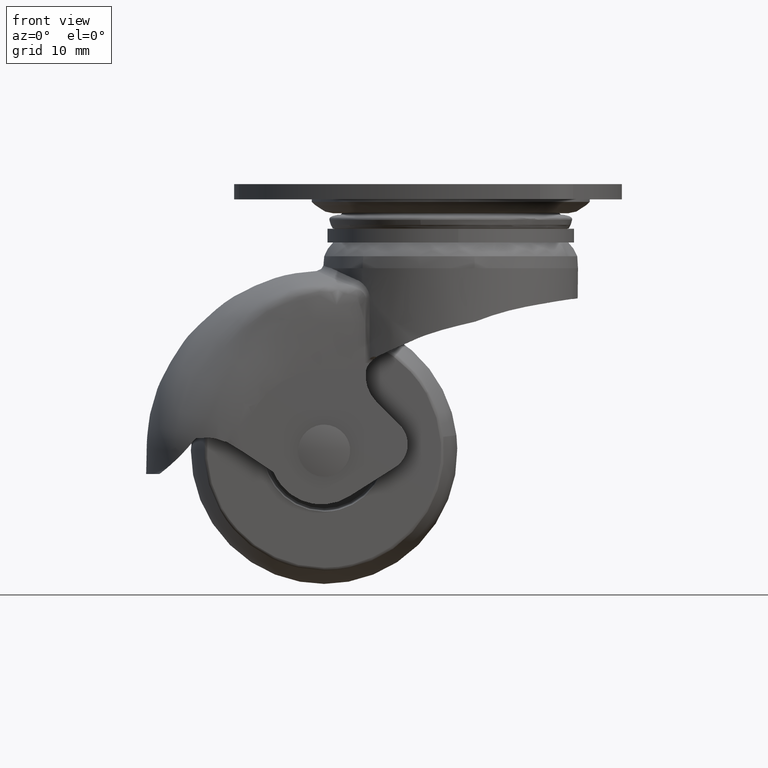
[diagram: clean part render]
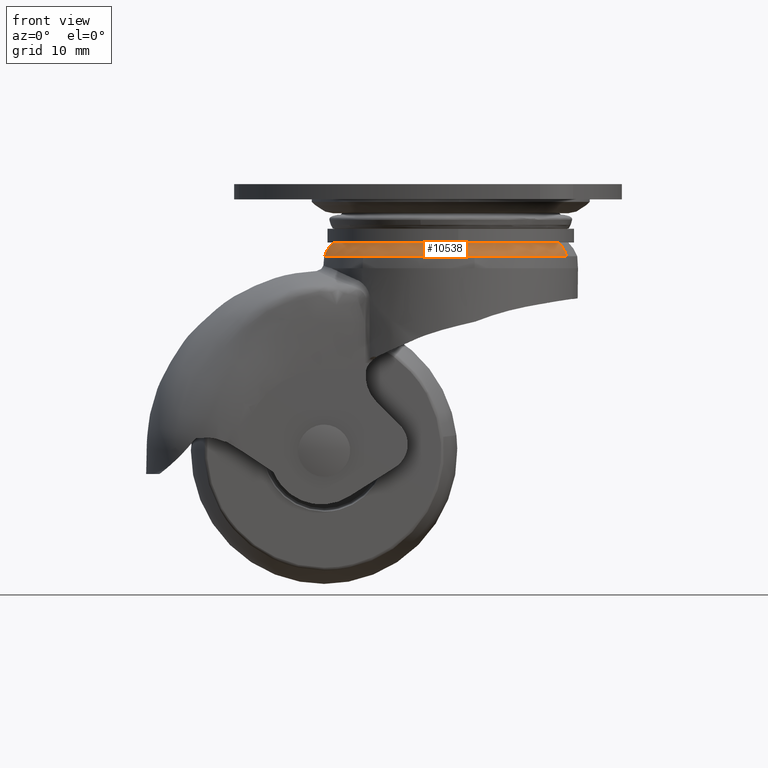
[diagram: same view with one face highlighted and labeled with its STEP entity id]
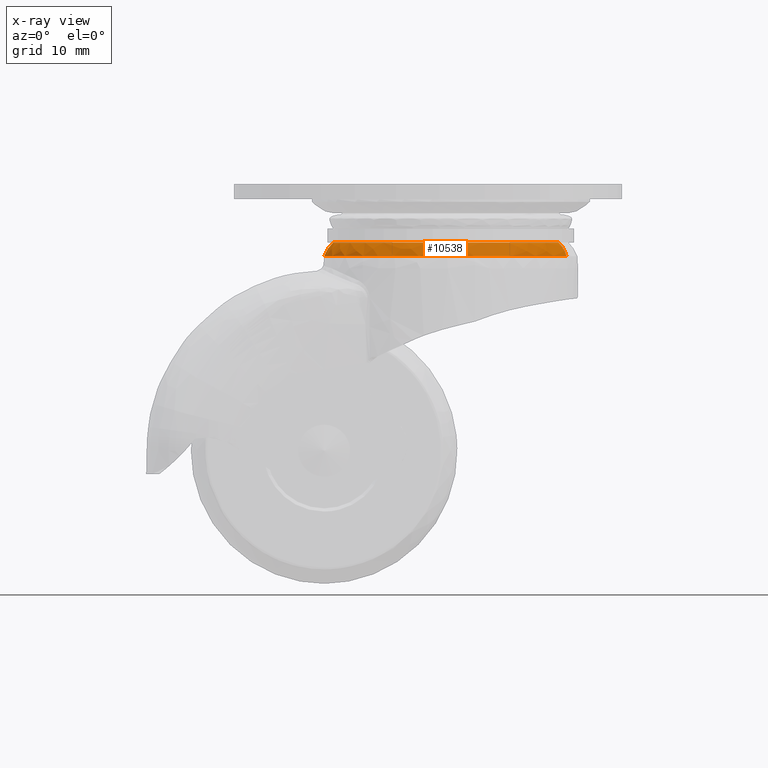
[diagram: x-ray of the same camera — body ghosted, the highlighted face saturated]
A machine part, front view. The second image highlights one B-rep face of the part: STEP entity #10538.
The next image is the same camera in x-ray: the body ghosted, the highlighted face saturated — about 0% of this face is hidden behind the body in this view.
In plain terms, the highlighted face is a freeform B-spline surface patch.
Its self-contained STEP definition (entity closure, byte-faithful):
#10288=CARTESIAN_POINT('',(-15.735206224410611,8.030868427095030,-8.785180318677041));
#10289=VERTEX_POINT('',#10288);
#10322=CARTESIAN_POINT('',(16.168754342670159,-7.117790782555396,-8.785180318672612));
#10323=VERTEX_POINT('',#10322);
#10337=CARTESIAN_POINT('',(17.374376848520921,-7.648524060749310,-10.832162650725930));
#10338=VERTEX_POINT('',#10337);
#10339=CARTESIAN_POINT('',(16.168754342670159,-7.117790782555396,-8.785180318672612));
#10340=CARTESIAN_POINT('',(17.088956519520963,-7.522878895851835,-9.585509667275785));
#10341=CARTESIAN_POINT('',(17.374376848520914,-7.648524060749310,-10.832162650725930));
#10349=(BOUNDED_CURVE()B_SPLINE_CURVE(2,(#10339,#10340,#10341),.UNSPECIFIED.,.F.,.U.)B_SPLINE_CURVE_WITH_KNOTS((3,3),(-1.514986752806446,-0.485126640816079),.UNSPECIFIED.)CURVE()GEOMETRIC_REPRESENTATION_ITEM()RATIONAL_B_SPLINE_CURVE((0.931721990555190,0.882439492822639,0.931711139167432))REPRESENTATION_ITEM(''));
#10350=EDGE_CURVE('',#10323,#10338,#10349,.T.);
#10367=CARTESIAN_POINT('',(-16.908500182186980,8.629689266453147,-10.832165184492560));
#10368=VERTEX_POINT('',#10367);
#10384=CARTESIAN_POINT('',(-15.735206224410614,8.030868427095030,-8.785180318677041));
#10385=CARTESIAN_POINT('',(-16.630734158051744,8.487924210335329,-9.585510630076746));
#10386=CARTESIAN_POINT('',(-16.908500182186984,8.629689266453147,-10.832165184492556));
#10394=(BOUNDED_CURVE()B_SPLINE_CURVE(2,(#10384,#10385,#10386),.UNSPECIFIED.,.F.,.U.)B_SPLINE_CURVE_WITH_KNOTS((3,3),(-1.514986752800429,-0.485125535810951),.UNSPECIFIED.)CURVE()GEOMETRIC_REPRESENTATION_ITEM()RATIONAL_B_SPLINE_CURVE((0.910763650495517,0.862589671396123,0.910753146556944))REPRESENTATION_ITEM(''));
#10395=EDGE_CURVE('',#10289,#10368,#10394,.T.);
#10400=CARTESIAN_POINT('',(16.080834789659303,-7.079086936012930,-8.711191086891661));
#10401=CARTESIAN_POINT('',(9.001747853646373,-23.159921725672227,-8.711191086891663));
#10402=CARTESIAN_POINT('',(-7.079086936012930,-16.080834789659303,-8.711191086891661));
#10403=CARTESIAN_POINT('',(-23.159921725672227,-9.001747853646373,-8.711191086891663));
#10404=CARTESIAN_POINT('',(-16.080834789659303,7.079086936012928,-8.711191086891661));
#10405=CARTESIAN_POINT('',(-15.878234558437368,7.539313074789744,-8.711191086891660));
#10406=CARTESIAN_POINT('',(-15.649644582415947,7.987198746995411,-8.711191086891661));
#10407=CARTESIAN_POINT('',(17.124314159397134,-7.538446246081844,-9.560650566077513));
#10408=CARTESIAN_POINT('',(9.585867913315289,-24.662760405478974,-9.560650566077513));
#10409=CARTESIAN_POINT('',(-7.538446246081843,-17.124314159397134,-9.560650566077513));
#10410=CARTESIAN_POINT('',(-24.662760405478974,-9.585867913315290,-9.560650566077513));
#10411=CARTESIAN_POINT('',(-17.124314159397134,7.538446246081843,-9.560650566077513));
#10412=CARTESIAN_POINT('',(-16.908567274761410,8.028536287293408,-9.560650566077513));
#10413=CARTESIAN_POINT('',(-16.665144180482919,8.505485093662252,-9.560650566077515));
#10414=CARTESIAN_POINT('',(17.399581860925792,-7.659624282874495,-10.950249484286775));
#10415=CARTESIAN_POINT('',(9.739957578051302,-25.059206143800289,-10.950249484286779));
#10416=CARTESIAN_POINT('',(-7.659624282874493,-17.399581860925792,-10.950249484286775));
#10417=CARTESIAN_POINT('',(-25.059206143800289,-9.739957578051302,-10.950249484286779));
#10418=CARTESIAN_POINT('',(-17.399581860925792,7.659624282874493,-10.950249484286775));
#10419=CARTESIAN_POINT('',(-17.180366916285280,8.157592359838651,-10.950249484286779));
#10420=CARTESIAN_POINT('',(-16.933030876061199,8.642207960944727,-10.950249484286783));
#10428=(BOUNDED_SURFACE()B_SPLINE_SURFACE(2,2,((#10400,#10407,#10414),(#10401,#10408,#10415),(#10402,#10409,#10416),(#10403,#10410,#10417),(#10404,#10411,#10418),(#10405,#10412,#10419),(#10406,#10413,#10420)),.UNSPECIFIED.,.F.,.F.,.U.)B_SPLINE_SURFACE_WITH_KNOTS((3,2,2,3),(3,3),(0.0,31.498332907282681,62.996665814565368,64.256597929290635),(0.0,2.750106980517234),.UNSPECIFIED.)GEOMETRIC_REPRESENTATION_ITEM()RATIONAL_B_SPLINE_SURFACE(((0.936891250136771,0.877270737847674,0.936879389520843),(0.662482156206053,0.620324087668616,0.662473769484101),(0.936891250136771,0.877270737847674,0.936879389520843),(0.662482156206053,0.620324087668616,0.662473769484101),(0.936891250136771,0.877270737847674,0.936879389520843),(0.925914896847419,0.866992881642248,0.925903175187117),(0.915816650983785,0.857537253149118,0.915805057162670)))REPRESENTATION_ITEM('')SURFACE());
#10429=CARTESIAN_POINT('',(-17.666113397869001,0.0,-8.785180317963400));
#10430=VERTEX_POINT('',#10429);
#10431=CARTESIAN_POINT('',(-17.666113397869001,0.0,-8.785180317963400));
#10432=CARTESIAN_POINT('',(-17.666113397869001,4.247563686686312,-8.785180317963400));
#10433=CARTESIAN_POINT('',(-15.735206224410613,8.030868427095030,-8.785180318677041));
#10441=(BOUNDED_CURVE()B_SPLINE_CURVE(2,(#10431,#10432,#10433),.UNSPECIFIED.,.F.,.U.)B_SPLINE_CURVE_WITH_KNOTS((3,3),(0.0,0.077307643276599),.UNSPECIFIED.)CURVE()GEOMETRIC_REPRESENTATION_ITEM()RATIONAL_B_SPLINE_CURVE((1.0,0.909428462087339,0.874871901326398))REPRESENTATION_ITEM(''));
#10442=EDGE_CURVE('',#10430,#10289,#10441,.T.);
#10443=ORIENTED_EDGE('',*,*,#10442,.T.);
#10444=ORIENTED_EDGE('',*,*,#10395,.T.);
#10445=CARTESIAN_POINT('',(-18.983385687776401,0.0,-10.832165072992099));
#10446=VERTEX_POINT('',#10445);
#10447=CARTESIAN_POINT('',(-18.983385687776401,0.0,-10.832165072992099));
#10448=CARTESIAN_POINT('',(-18.983385687776401,4.564282922859114,-10.832165072992099));
#10449=CARTESIAN_POINT('',(-16.908500182186987,8.629689266453148,-10.832165184492556));
#10457=(BOUNDED_CURVE()B_SPLINE_CURVE(2,(#10447,#10448,#10449),.UNSPECIFIED.,.F.,.U.)B_SPLINE_CURVE_WITH_KNOTS((3,3),(0.0,0.077307643274355),.UNSPECIFIED.)CURVE()GEOMETRIC_REPRESENTATION_ITEM()RATIONAL_B_SPLINE_CURVE((1.0,0.909428462089968,0.874871901328404))REPRESENTATION_ITEM(''));
#10458=EDGE_CURVE('',#10446,#10368,#10457,.T.);
#10459=ORIENTED_EDGE('',*,*,#10458,.F.);
#10460=CARTESIAN_POINT('',(-13.108446394946780,-13.730898196467500,-10.832165072999921));
#10461=VERTEX_POINT('',#10460);
#10462=CARTESIAN_POINT('',(-13.108446394946778,-13.730898196467503,-10.832165072999924));
#10463=CARTESIAN_POINT('',(-18.983385687776394,-8.122282817360341,-10.832165072992101));
#10464=CARTESIAN_POINT('',(-18.983385687776401,0.0,-10.832165072992099));
#10472=(BOUNDED_CURVE()B_SPLINE_CURVE(2,(#10462,#10463,#10464),.UNSPECIFIED.,.F.,.U.)B_SPLINE_CURVE_WITH_KNOTS((3,3),(0.871501103151236,1.0),.UNSPECIFIED.)CURVE()GEOMETRIC_REPRESENTATION_ITEM()RATIONAL_B_SPLINE_CURVE((0.853668132370819,0.849454177951950,1.0))REPRESENTATION_ITEM(''));
#10473=EDGE_CURVE('',#10461,#10446,#10472,.T.);
#10474=ORIENTED_EDGE('',*,*,#10473,.F.);
#10475=CARTESIAN_POINT('',(3.557131765466065,-18.647137736768290,-10.832165072994480));
#10476=VERTEX_POINT('',#10475);
#10477=CARTESIAN_POINT('',(3.557131765466065,-18.647137736768286,-10.832165072994478));
#10478=CARTESIAN_POINT('',(1.794458277507982,-18.983385687776401,-10.832165072992106));
#10479=CARTESIAN_POINT('',(0.0,-18.983385687776401,-10.832165072992099));
#10480=CARTESIAN_POINT('',(-7.606545647256391,-18.983385687776408,-10.832165072992099));
#10481=CARTESIAN_POINT('',(-13.108446394946778,-13.730898196467503,-10.832165072999924));
#10489=(BOUNDED_CURVE()B_SPLINE_CURVE(2,(#10477,#10478,#10479,#10480,#10481),.UNSPECIFIED.,.F.,.U.)B_SPLINE_CURVE_WITH_KNOTS((3,2,3),(0.717838633740415,0.750000000000000,0.871501103151235),.UNSPECIFIED.)CURVE()GEOMETRIC_REPRESENTATION_ITEM()RATIONAL_B_SPLINE_CURVE((0.934335795160104,0.962320615659167,1.0,0.857652603234598,0.853668132370819))REPRESENTATION_ITEM(''));
#10490=EDGE_CURVE('',#10476,#10461,#10489,.T.);
#10491=ORIENTED_EDGE('',*,*,#10490,.F.);
#10492=CARTESIAN_POINT('',(17.374376848520921,-7.648524060749310,-10.832162650725930));
#10493=CARTESIAN_POINT('',(13.355404779553499,-16.778016883474340,-10.832163861860206));
#10494=CARTESIAN_POINT('',(3.557131765466064,-18.647137736768290,-10.832165072994483));
#10502=(BOUNDED_CURVE()B_SPLINE_CURVE(2,(#10492,#10493,#10494),.UNSPECIFIED.,.F.,.U.)B_SPLINE_CURVE_WITH_KNOTS((3,3),(0.568414956251090,0.717838633740415),.UNSPECIFIED.)CURVE()GEOMETRIC_REPRESENTATION_ITEM()RATIONAL_B_SPLINE_CURVE((0.883563156462430,0.804316605082864,0.934335795160104))REPRESENTATION_ITEM(''));
#10503=EDGE_CURVE('',#10338,#10476,#10502,.T.);
#10504=ORIENTED_EDGE('',*,*,#10503,.F.);
#10505=ORIENTED_EDGE('',*,*,#10350,.F.);
#10506=CARTESIAN_POINT('',(4.608055637176343,-17.054541533940348,-8.785180278777272));
#10507=VERTEX_POINT('',#10506);
#10508=CARTESIAN_POINT('',(16.168754342670162,-7.117790782555397,-8.785180318672612));
#10509=CARTESIAN_POINT('',(12.764588216629761,-14.850685369929479,-8.785180317963402));
#10510=CARTESIAN_POINT('',(4.608055637176343,-17.054541533940348,-8.785180278777272));
#10518=(BOUNDED_CURVE()B_SPLINE_CURVE(2,(#10508,#10509,#10510),.UNSPECIFIED.,.F.,.U.)B_SPLINE_CURVE_WITH_KNOTS((3,3),(0.568414990141400,0.705522207669850),.UNSPECIFIED.)CURVE()GEOMETRIC_REPRESENTATION_ITEM()RATIONAL_B_SPLINE_CURVE((0.883563120515123,0.810848622830191,0.914323587274418))REPRESENTATION_ITEM(''));
#10519=EDGE_CURVE('',#10323,#10507,#10518,.T.);
#10520=ORIENTED_EDGE('',*,*,#10519,.T.);
#10521=CARTESIAN_POINT('',(4.608055637176343,-17.054541533940352,-8.785180278777272));
#10522=CARTESIAN_POINT('',(2.344611111679558,-17.666113397869005,-8.785180317963400));
#10523=CARTESIAN_POINT('',(0.0,-17.666113397869001,-8.785180317963400));
#10524=CARTESIAN_POINT('',(-17.666113397869001,-17.666113397869001,-8.785180317963402));
#10525=CARTESIAN_POINT('',(-17.666113397869001,0.0,-8.785180317963400));
#10533=(BOUNDED_CURVE()B_SPLINE_CURVE(2,(#10521,#10522,#10523,#10524,#10525),.UNSPECIFIED.,.F.,.U.)B_SPLINE_CURVE_WITH_KNOTS((3,2,3),(0.705522207669850,0.750000000000000,1.0),.UNSPECIFIED.)CURVE()GEOMETRIC_REPRESENTATION_ITEM()RATIONAL_B_SPLINE_CURVE((0.914323587274419,0.947891024954824,1.0,0.707106781186547,1.0))REPRESENTATION_ITEM(''));
#10534=EDGE_CURVE('',#10507,#10430,#10533,.T.);
#10535=ORIENTED_EDGE('',*,*,#10534,.T.);
#10536=EDGE_LOOP('',(#10443,#10444,#10459,#10474,#10491,#10504,#10505,#10520,#10535));
#10537=FACE_OUTER_BOUND('',#10536,.T.);
#10538=ADVANCED_FACE('',(#10537),#10428,.T.);